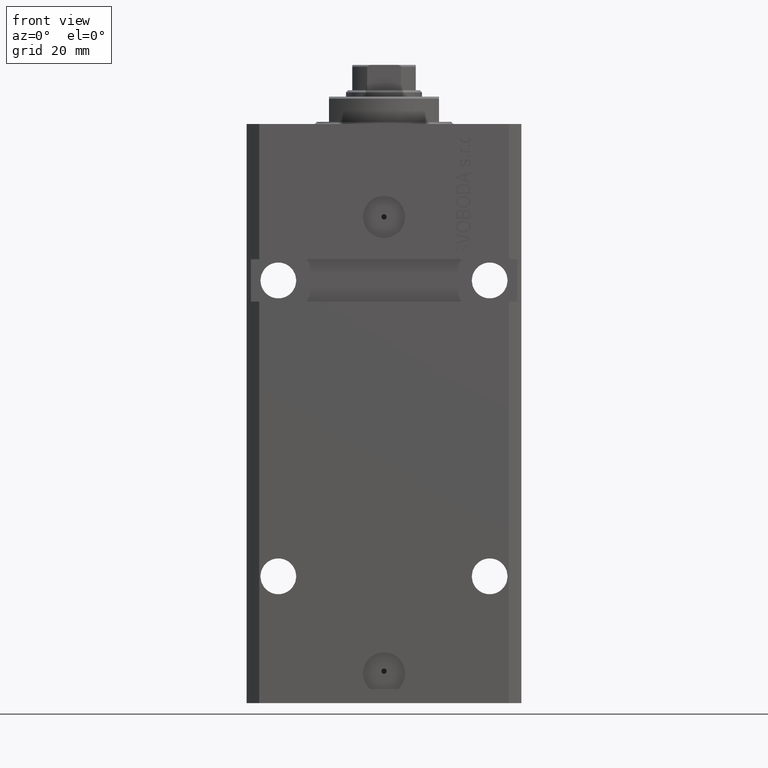
[diagram: clean part render]
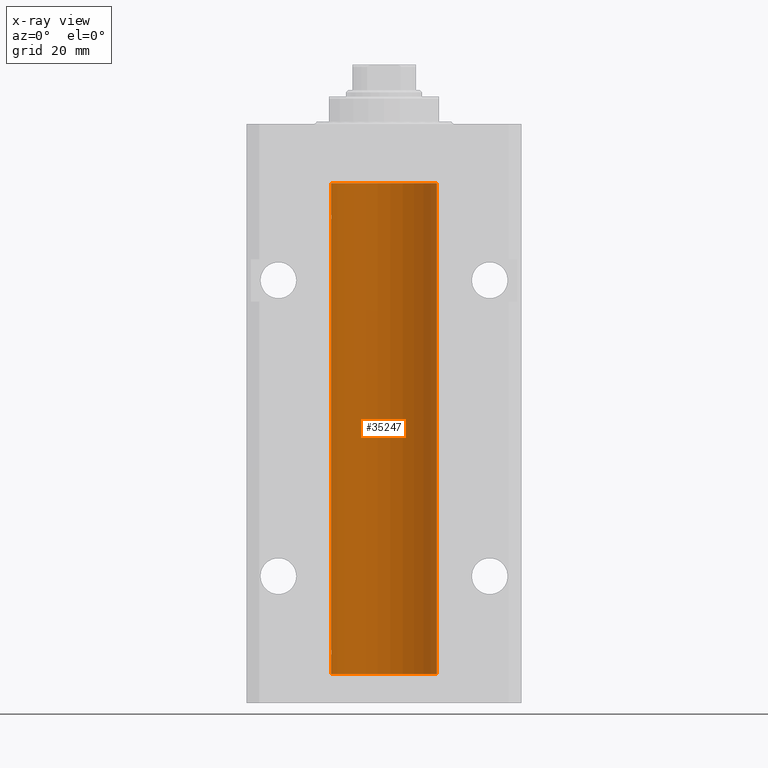
[diagram: x-ray — body ghosted, one internal face saturated and labeled with its STEP entity id]
A machine part, front view, then the same camera in x-ray: the body is ghosted and one INTERNAL B-rep face — a face not visible from any outside direction — is saturated and labeled: STEP entity #35247.
In plain terms, the highlighted cylindrical surface (partial cylindrical patch) has radius 12.5 mm, axis along (0, 0, 1).
Its self-contained STEP definition (entity closure, byte-faithful):
#393 = B_SPLINE_CURVE_WITH_KNOTS ( 'NONE', 3,
 ( #1713, #45357, #38583, #30896, #45594, #34285, #30662, #16890, #45826, #46053, #12585, #31353, #12343, #13290 ),
 .UNSPECIFIED., .F., .F.,
 ( 4, 2, 2, 2, 2, 2, 4 ),
 ( 3.496117753580553008E-18, 0.0002442924852390892100, 0.0004885849704781749505, 0.0009771699409563759219, 0.001221462426195476462, 0.001465754911434576785, 0.001954339881912777865 ),
 .UNSPECIFIED. ) ;
#554 = LINE ( 'NONE', #22271, #24468 ) ;
#1188 = CARTESIAN_POINT ( 'NONE',  ( -12.50000000000017941, 3.883381646606358354E-13, -22.62500000000358824 ) ) ;
#1327 = VERTEX_POINT ( 'NONE', #34330 ) ;
#1399 = CARTESIAN_POINT ( 'NONE',  ( 12.50000000000000000, 0.000000000000000000, -13.99999999999999822 ) ) ;
#1418 = CARTESIAN_POINT ( 'NONE',  ( -12.49915784441386890, 0.1636601911727947889, -21.39126818989430490 ) ) ;
#1614 = AXIS2_PLACEMENT_3D ( 'NONE', #20566, #9477, #17195 ) ;
#1713 = CARTESIAN_POINT ( 'NONE',  ( -12.50000000000000000, -1.890568805888175348E-14, -124.3750000000000000 ) ) ;
#2320 = ORIENTED_EDGE ( 'NONE', *, *, #30799, .F. ) ;
#2515 = FACE_OUTER_BOUND ( 'NONE', #45988, .T. ) ;
#2614 = VERTEX_POINT ( 'NONE', #2885 ) ;
#2885 = CARTESIAN_POINT ( 'NONE',  ( -12.50000000000000000, -1.890568805888175348E-14, -124.3750000000000000 ) ) ;
#3303 = DIRECTION ( 'NONE',  ( 0.000000000000000000, 0.000000000000000000, 1.000000000000000000 ) ) ;
#5070 = CARTESIAN_POINT ( 'NONE',  ( -12.50000000000000000, 1.530808498934191521E-15, -130.0999999999999943 ) ) ;
#5451 = CARTESIAN_POINT ( 'NONE',  ( -12.50000000000000000, 1.530808498934191521E-15, -13.99999999999999822 ) ) ;
#6393 = VECTOR ( 'NONE', #13011, 1000.000000000000000 ) ;
#6624 = VERTEX_POINT ( 'NONE', #5451 ) ;
#6682 = ORIENTED_EDGE ( 'NONE', *, *, #44947, .T. ) ;
#6845 = LINE ( 'NONE', #24446, #13488 ) ;
#7185 = CARTESIAN_POINT ( 'NONE',  ( 12.50000000000000000, 0.000000000000000000, -130.0999999999999943 ) ) ;
#8892 = CARTESIAN_POINT ( 'NONE',  ( -12.49631005746706336, 0.3253680783018528255, -22.55856740465392463 ) ) ;
#9113 = CARTESIAN_POINT ( 'NONE',  ( -12.49999999999999289, 0.1631761135151241215, -22.62499999999984013 ) ) ;
#9477 = DIRECTION ( 'NONE',  ( 0.000000000000000000, 0.000000000000000000, 1.000000000000000000 ) ) ;
#10318 = CARTESIAN_POINT ( 'NONE',  ( 12.50000000000000000, 0.000000000000000000, -130.0999999999999943 ) ) ;
#10952 = DIRECTION ( 'NONE',  ( 1.000000000000000000, 0.000000000000000000, 0.000000000000000000 ) ) ;
#12343 = CARTESIAN_POINT ( 'NONE',  ( -12.49999999999999467, 0.1631761135151251485, -125.6249999999999005 ) ) ;
#12585 = CARTESIAN_POINT ( 'NONE',  ( -12.49011732893843707, 0.5003763274120269777, -125.3834811128928806 ) ) ;
#12741 = ORIENTED_EDGE ( 'NONE', *, *, #25231, .T. ) ;
#13011 = DIRECTION ( 'NONE',  ( -0.000000000000000000, -0.000000000000000000, 1.000000000000000000 ) ) ;
#13248 = LINE ( 'NONE', #5070, #6393 ) ;
#13290 = CARTESIAN_POINT ( 'NONE',  ( -12.50000000000017941, 3.883381307462307207E-13, -125.6250000000035953 ) ) ;
#13488 = VECTOR ( 'NONE', #35535, 1000.000000000000000 ) ;
#14030 = VERTEX_POINT ( 'NONE', #1399 ) ;
#15016 = EDGE_CURVE ( 'NONE', #14030, #6624, #26956, .T. ) ;
#16135 = CARTESIAN_POINT ( 'NONE',  ( -12.48810268015257563, 0.5573155909661349217, -21.67347410093867666 ) ) ;
#16233 = CARTESIAN_POINT ( 'NONE',  ( -12.50000000000000000, 1.530808498934191521E-15, -130.0999999999999943 ) ) ;
#16374 = CARTESIAN_POINT ( 'NONE',  ( -12.50000000000000000, -2.089494013101375120E-17, -21.37499999999999645 ) ) ;
#16826 = CARTESIAN_POINT ( 'NONE',  ( -12.48809959379011403, 0.5462151254764975317, -22.31461370481611795 ) ) ;
#16890 = CARTESIAN_POINT ( 'NONE',  ( -12.48436376893640265, 0.6250290278979852010, -125.0813208282447135 ) ) ;
#16904 = EDGE_CURVE ( 'NONE', #38417, #43554, #31620, .T. ) ;
#17195 = DIRECTION ( 'NONE',  ( 1.000000000000000000, 0.000000000000000000, 0.000000000000000000 ) ) ;
#17235 = DIRECTION ( 'NONE',  ( -0.000000000000000000, -0.000000000000000000, 1.000000000000000000 ) ) ;
#17795 = DIRECTION ( 'NONE',  ( -0.000000000000000000, -0.000000000000000000, 1.000000000000000000 ) ) ;
#19526 = CARTESIAN_POINT ( 'NONE',  ( -12.49422197749724006, 0.3843754434364375916, -21.50047099568095277 ) ) ;
#20566 = CARTESIAN_POINT ( 'NONE',  ( 0.000000000000000000, 0.000000000000000000, -130.0999999999999943 ) ) ;
#21085 = ORIENTED_EDGE ( 'NONE', *, *, #34071, .F. ) ;
#22271 = CARTESIAN_POINT ( 'NONE',  ( -12.50000000000000000, 1.530808498934191521E-15, -130.0999999999999943 ) ) ;
#22577 = EDGE_CURVE ( 'NONE', #2614, #26646, #13248, .T. ) ;
#23066 = ORIENTED_EDGE ( 'NONE', *, *, #24155, .T. ) ;
#24155 = EDGE_CURVE ( 'NONE', #26794, #26646, #44533, .T. ) ;
#24446 = CARTESIAN_POINT ( 'NONE',  ( -12.50000000000000000, 1.530808498934191521E-15, -130.0999999999999943 ) ) ;
#24468 = VECTOR ( 'NONE', #25648, 1000.000000000000000 ) ;
#24981 = VECTOR ( 'NONE', #17795, 1000.000000000000000 ) ;
#25231 = EDGE_CURVE ( 'NONE', #38417, #14030, #43810, .T. ) ;
#25648 = DIRECTION ( 'NONE',  ( -0.000000000000000000, -0.000000000000000000, 1.000000000000000000 ) ) ;
#25662 = CYLINDRICAL_SURFACE ( 'NONE', #38375, 12.50000000000000000 ) ;
#26646 = VERTEX_POINT ( 'NONE', #45208 ) ;
#26794 = VERTEX_POINT ( 'NONE', #44429 ) ;
#26956 = CIRCLE ( 'NONE', #39236, 12.50000000000000000 ) ;
#27371 = ORIENTED_EDGE ( 'NONE', *, *, #16904, .F. ) ;
#30662 = CARTESIAN_POINT ( 'NONE',  ( -12.48436813453758631, 0.6249418250771061611, -124.8366899679892441 ) ) ;
#30799 = EDGE_CURVE ( 'NONE', #26794, #6624, #6845, .T. ) ;
#30831 = CARTESIAN_POINT ( 'NONE',  ( -12.48520330846397819, 0.6088355886774127201, -22.16325431852561323 ) ) ;
#30896 = CARTESIAN_POINT ( 'NONE',  ( -12.49625855304193855, 0.3150454781037954621, -124.4540280029748658 ) ) ;
#31070 = CARTESIAN_POINT ( 'NONE',  ( -12.48436376893640443, 0.6250290278979917513, -22.08132082824473486 ) ) ;
#31353 = CARTESIAN_POINT ( 'NONE',  ( -12.49631005746706691, 0.3253680783018559897, -125.5585674046538998 ) ) ;
#31620 = CIRCLE ( 'NONE', #1614, 12.50000000000000000 ) ;
#32006 = ORIENTED_EDGE ( 'NONE', *, *, #22577, .F. ) ;
#34071 = EDGE_CURVE ( 'NONE', #43554, #1327, #554, .T. ) ;
#34285 = CARTESIAN_POINT ( 'NONE',  ( -12.48810268015257563, 0.5573155909661203777, -124.6734741009386909 ) ) ;
#34330 = CARTESIAN_POINT ( 'NONE',  ( -12.50000000000017941, 3.883381307462307207E-13, -125.6250000000035953 ) ) ;
#35247 = ADVANCED_FACE ( 'NONE', ( #2515 ), #25662, .F. ) ;
#35535 = DIRECTION ( 'NONE',  ( -0.000000000000000000, -0.000000000000000000, 1.000000000000000000 ) ) ;
#36323 = CARTESIAN_POINT ( 'NONE',  ( 0.000000000000000000, 0.000000000000000000, -13.99999999999999822 ) ) ;
#38375 = AXIS2_PLACEMENT_3D ( 'NONE', #47365, #17235, #10952 ) ;
#38417 = VERTEX_POINT ( 'NONE', #7185 ) ;
#38583 = CARTESIAN_POINT ( 'NONE',  ( -12.49915784441387068, 0.1636601911727856851, -124.3912681898942765 ) ) ;
#39126 = ORIENTED_EDGE ( 'NONE', *, *, #15016, .T. ) ;
#39236 = AXIS2_PLACEMENT_3D ( 'NONE', #36323, #3303, #47424 ) ;
#41909 = CARTESIAN_POINT ( 'NONE',  ( -12.49625855304193678, 0.3150454781038042329, -21.45402800297484802 ) ) ;
#42367 = CARTESIAN_POINT ( 'NONE',  ( -12.50000000000000000, 0.08260426088729219685, -21.37500000000000000 ) ) ;
#43554 = VERTEX_POINT ( 'NONE', #16233 ) ;
#43810 = LINE ( 'NONE', #10318, #24981 ) ;
#44429 = CARTESIAN_POINT ( 'NONE',  ( -12.50000000000000000, -2.089494013101375120E-17, -21.37499999999999645 ) ) ;
#44533 = B_SPLINE_CURVE_WITH_KNOTS ( 'NONE', 3,
 ( #16374, #42367, #1418, #41909, #19526, #16135, #45294, #31070, #30831, #16826, #45767, #8892, #9113, #1188 ),
 .UNSPECIFIED., .F., .F.,
 ( 4, 2, 2, 2, 2, 2, 4 ),
 ( 2.030551168097110502E-20, 0.0002442924852390969078, 0.0004885849704781938157, 0.0009771699409563880650, 0.001221462426195485135, 0.001465754911434582423, 0.001954339881912776130 ),
 .UNSPECIFIED. ) ;
#44947 = EDGE_CURVE ( 'NONE', #2614, #1327, #393, .T. ) ;
#45208 = CARTESIAN_POINT ( 'NONE',  ( -12.50000000000017941, 3.883381646606358354E-13, -22.62500000000358824 ) ) ;
#45294 = CARTESIAN_POINT ( 'NONE',  ( -12.48436813453758454, 0.6249418250771192618, -21.83668996798922635 ) ) ;
#45357 = CARTESIAN_POINT ( 'NONE',  ( -12.50000000000000178, 0.08260426088727608473, -124.3749999999999858 ) ) ;
#45594 = CARTESIAN_POINT ( 'NONE',  ( -12.49422197749723829, 0.3843754434364221040, -124.5004709956809705 ) ) ;
#45767 = CARTESIAN_POINT ( 'NONE',  ( -12.49011732893843529, 0.5003763274120274218, -22.38348111289287701 ) ) ;
#45826 = CARTESIAN_POINT ( 'NONE',  ( -12.48520330846398174, 0.6088355886774048376, -125.1632543185256310 ) ) ;
#45988 = EDGE_LOOP ( 'NONE', ( #21085, #27371, #12741, #39126, #2320, #23066, #32006, #6682 ) ) ;
#46053 = CARTESIAN_POINT ( 'NONE',  ( -12.48809959379011758, 0.5462151254764870956, -125.3146137048161677 ) ) ;
#47365 = CARTESIAN_POINT ( 'NONE',  ( 0.000000000000000000, 0.000000000000000000, -130.0999999999999943 ) ) ;
#47424 = DIRECTION ( 'NONE',  ( 1.000000000000000000, 0.000000000000000000, 0.000000000000000000 ) ) ;